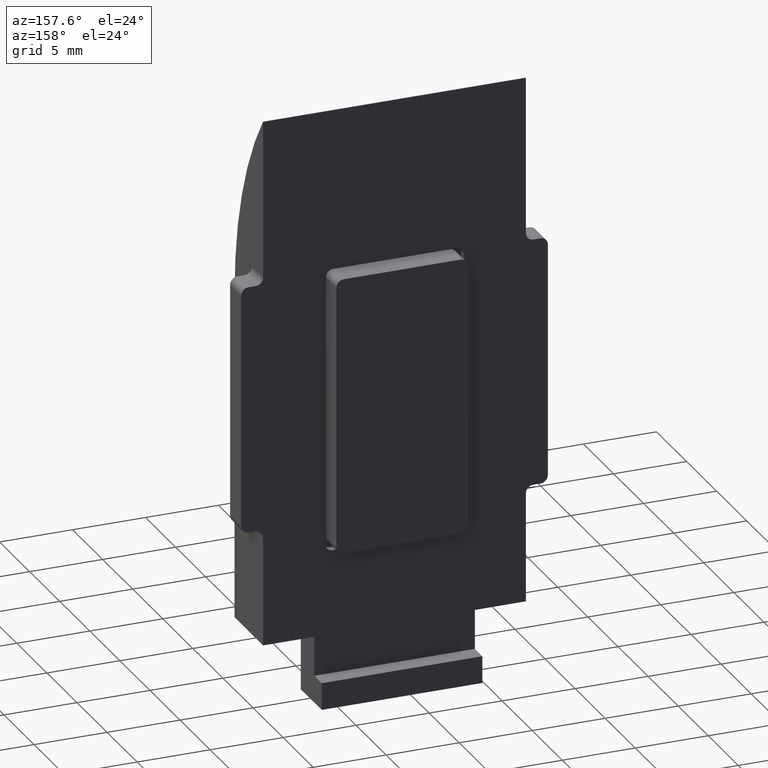
[diagram: clean part render]
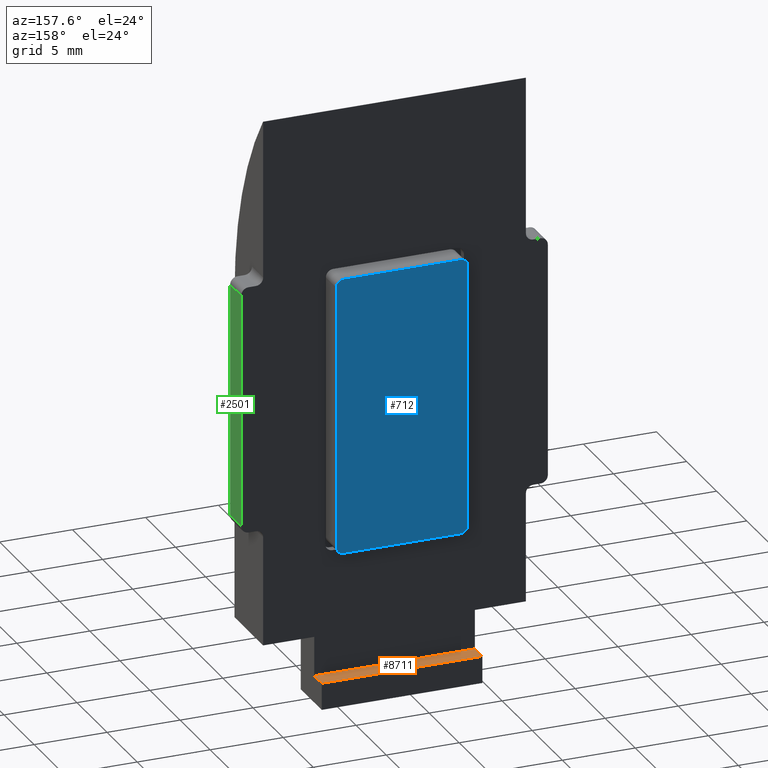
[diagram: same view with three faces highlighted in distinct colors, each labeled with its STEP entity id]
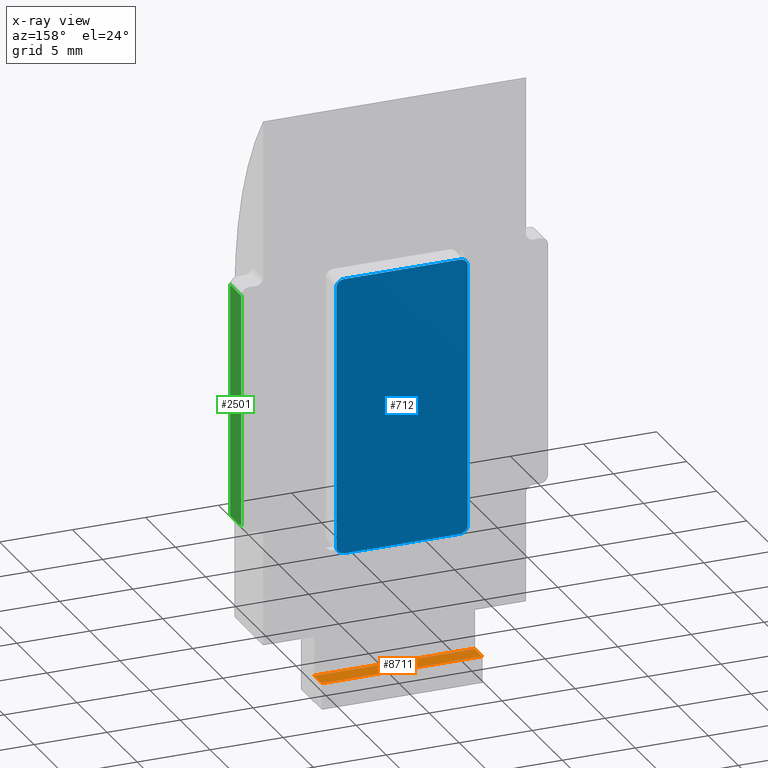
[diagram: x-ray of the same camera — body ghosted, the three highlighted faces saturated]
A machine part, auxiliary view with three faces highlighted in distinct colors.
The next image is the same camera in x-ray (body ghosted, the three faces saturated) — at least one of them is partly hidden behind the body in this view.
Their STEP definitions:

[orange] entity #8711 — the highlighted planar face has unit normal (0, 0, -1).
#147 = LINE ( 'NONE', #7138, #14439 ) ;
#710 = CARTESIAN_POINT ( 'NONE',  ( -5.500000000000000000, 4.750000000000001776, -2.700000000000021938 ) ) ;
#945 = VERTEX_POINT ( 'NONE', #6678 ) ;
#1002 = ORIENTED_EDGE ( 'NONE', *, *, #4517, .F. ) ;
#1059 = AXIS2_PLACEMENT_3D ( 'NONE', #15619, #15679, #3811 ) ;
#1560 = VERTEX_POINT ( 'NONE', #2457 ) ;
#1601 = ORIENTED_EDGE ( 'NONE', *, *, #2650, .F. ) ;
#1993 = DIRECTION ( 'NONE',  ( 0.000000000000000000, -1.000000000000000000, 0.000000000000000000 ) ) ;
#2457 = CARTESIAN_POINT ( 'NONE',  ( 5.500000000000000000, 4.750000000000001776, -2.700000000000021938 ) ) ;
#2650 = EDGE_CURVE ( 'NONE', #945, #1560, #7954, .T. ) ;
#3044 = VERTEX_POINT ( 'NONE', #710 ) ;
#3387 = EDGE_LOOP ( 'NONE', ( #7425, #7235, #1002, #1601 ) ) ;
#3520 = LINE ( 'NONE', #4364, #4766 ) ;
#3811 = DIRECTION ( 'NONE',  ( -1.000000000000000000, 0.000000000000000000, -0.000000000000000000 ) ) ;
#3854 = CARTESIAN_POINT ( 'NONE',  ( -5.500000000000000000, 5.999999999999988454, -2.700000000000021938 ) ) ;
#4364 = CARTESIAN_POINT ( 'NONE',  ( 9.000000000000000000, 5.999999999999988454, -2.700000000000021938 ) ) ;
#4517 = EDGE_CURVE ( 'NONE', #1560, #3044, #15724, .T. ) ;
#4766 = VECTOR ( 'NONE', #6965, 1000.000000000000000 ) ;
#6110 = EDGE_CURVE ( 'NONE', #8042, #3044, #147, .T. ) ;
#6678 = CARTESIAN_POINT ( 'NONE',  ( 5.500000000000000000, 5.999999999999988454, -2.700000000000021938 ) ) ;
#6965 = DIRECTION ( 'NONE',  ( -1.000000000000000000, -0.000000000000000000, -0.000000000000000000 ) ) ;
#7138 = CARTESIAN_POINT ( 'NONE',  ( -5.500000000000000000, 0.000000000000000000, -2.700000000000021938 ) ) ;
#7235 = ORIENTED_EDGE ( 'NONE', *, *, #6110, .T. ) ;
#7425 = ORIENTED_EDGE ( 'NONE', *, *, #10898, .T. ) ;
#7954 = LINE ( 'NONE', #9158, #12543 ) ;
#8042 = VERTEX_POINT ( 'NONE', #3854 ) ;
#8711 = ADVANCED_FACE ( 'NONE', ( #13540 ), #12978, .F. ) ;
#9158 = CARTESIAN_POINT ( 'NONE',  ( 5.499999999999998224, 8.673617379884035472E-16, -2.700000000000021938 ) ) ;
#10898 = EDGE_CURVE ( 'NONE', #945, #8042, #3520, .T. ) ;
#11848 = DIRECTION ( 'NONE',  ( -2.478176394252582127E-16, -1.000000000000000000, 0.000000000000000000 ) ) ;
#12543 = VECTOR ( 'NONE', #11848, 1000.000000000000000 ) ;
#12978 = PLANE ( 'NONE',  #1059 ) ;
#13540 = FACE_OUTER_BOUND ( 'NONE', #3387, .T. ) ;
#13619 = CARTESIAN_POINT ( 'NONE',  ( 9.000000000000000000, 4.750000000000001776, -2.700000000000021938 ) ) ;
#14439 = VECTOR ( 'NONE', #1993, 1000.000000000000000 ) ;
#15619 = CARTESIAN_POINT ( 'NONE',  ( 9.000000000000000000, 0.000000000000000000, -2.700000000000021938 ) ) ;
#15679 = DIRECTION ( 'NONE',  ( 0.000000000000000000, 0.000000000000000000, -1.000000000000000000 ) ) ;
#15724 = LINE ( 'NONE', #13619, #15939 ) ;
#15939 = VECTOR ( 'NONE', #16116, 1000.000000000000000 ) ;
#16116 = DIRECTION ( 'NONE',  ( -1.000000000000000000, -0.000000000000000000, -0.000000000000000000 ) ) ;

[blue] entity #712 — the highlighted planar face has unit normal (0, 1, -0).
#321 = DIRECTION ( 'NONE',  ( 3.189809467016240867E-16, -1.000000000000000000, 0.000000000000000000 ) ) ;
#335 = CARTESIAN_POINT ( 'NONE',  ( 18.49999999999999289, 8.499999999999996447, 1.750000000000001554 ) ) ;
#553 = EDGE_CURVE ( 'NONE', #13826, #2356, #1381, .T. ) ;
#606 = VECTOR ( 'NONE', #10391, 1000.000000000000000 ) ;
#610 = VERTEX_POINT ( 'NONE', #14327 ) ;
#703 = DIRECTION ( 'NONE',  ( 0.000000000000000000, 0.000000000000000000, 1.000000000000000000 ) ) ;
#712 = ADVANCED_FACE ( 'NONE', ( #9052 ), #7241, .T. ) ;
#759 = VECTOR ( 'NONE', #13999, 1000.000000000000000 ) ;
#1062 = CARTESIAN_POINT ( 'NONE',  ( 0.4999999999999970024, 8.499999999999998224, 1.749999999999999778 ) ) ;
#1087 = CARTESIAN_POINT ( 'NONE',  ( 0.000000000000000000, 0.000000000000000000, 1.749999999999999778 ) ) ;
#1381 = LINE ( 'NONE', #16808, #759 ) ;
#1822 = DIRECTION ( 'NONE',  ( 0.000000000000000000, 0.000000000000000000, 1.000000000000000000 ) ) ;
#2014 = ORIENTED_EDGE ( 'NONE', *, *, #5254, .T. ) ;
#2356 = VERTEX_POINT ( 'NONE', #10888 ) ;
#2698 = EDGE_LOOP ( 'NONE', ( #8949, #12854, #14445, #6241, #2014, #8377, #14547, #4828 ) ) ;
#2836 = LINE ( 'NONE', #8935, #6579 ) ;
#3506 = LINE ( 'NONE', #1087, #606 ) ;
#3620 = CIRCLE ( 'NONE', #8831, 0.5000000000000000000 ) ;
#3795 = CIRCLE ( 'NONE', #10307, 0.5000000000000004441 ) ;
#4184 = CARTESIAN_POINT ( 'NONE',  ( -3.469446951953614189E-15, 9.000000000000000000, 1.749999999999999778 ) ) ;
#4377 = DIRECTION ( 'NONE',  ( 1.000000000000000000, 0.000000000000000000, 0.000000000000000000 ) ) ;
#4455 = CARTESIAN_POINT ( 'NONE',  ( 18.99999999999999289, 8.499999999999996447, 1.750000000000001554 ) ) ;
#4741 = CARTESIAN_POINT ( 'NONE',  ( 18.50000000000000000, 0.5000000000000004441, 1.750000000000001554 ) ) ;
#4828 = ORIENTED_EDGE ( 'NONE', *, *, #9027, .T. ) ;
#5254 = EDGE_CURVE ( 'NONE', #16420, #7083, #3506, .T. ) ;
#6235 = EDGE_CURVE ( 'NONE', #11401, #15448, #2836, .T. ) ;
#6241 = ORIENTED_EDGE ( 'NONE', *, *, #8076, .T. ) ;
#6426 = VERTEX_POINT ( 'NONE', #16628 ) ;
#6459 = DIRECTION ( 'NONE',  ( 1.000000000000000000, 0.000000000000000000, 0.000000000000000000 ) ) ;
#6518 = VECTOR ( 'NONE', #321, 1000.000000000000000 ) ;
#6579 = VECTOR ( 'NONE', #7421, 1000.000000000000000 ) ;
#7083 = VERTEX_POINT ( 'NONE', #11543 ) ;
#7125 = LINE ( 'NONE', #4184, #6518 ) ;
#7241 = PLANE ( 'NONE',  #15404 ) ;
#7293 = DIRECTION ( 'NONE',  ( 1.000000000000000000, 0.000000000000000000, 0.000000000000000000 ) ) ;
#7368 = AXIS2_PLACEMENT_3D ( 'NONE', #335, #16081, #14725 ) ;
#7421 = DIRECTION ( 'NONE',  ( -3.854941057726239083E-16, 1.000000000000000000, 0.000000000000000000 ) ) ;
#7653 = CARTESIAN_POINT ( 'NONE',  ( 18.49999999999999289, 8.999999999999998224, 1.750000000000001554 ) ) ;
#8076 = EDGE_CURVE ( 'NONE', #610, #16420, #3620, .T. ) ;
#8377 = ORIENTED_EDGE ( 'NONE', *, *, #9214, .T. ) ;
#8831 = AXIS2_PLACEMENT_3D ( 'NONE', #16567, #1822, #4377 ) ;
#8935 = CARTESIAN_POINT ( 'NONE',  ( 19.00000000000000000, 0.000000000000000000, 1.750000000000001554 ) ) ;
#8949 = ORIENTED_EDGE ( 'NONE', *, *, #553, .T. ) ;
#9027 = EDGE_CURVE ( 'NONE', #15448, #13826, #13946, .T. ) ;
#9052 = FACE_OUTER_BOUND ( 'NONE', #2698, .T. ) ;
#9204 = CIRCLE ( 'NONE', #13490, 0.5000000000000000000 ) ;
#9214 = EDGE_CURVE ( 'NONE', #7083, #11401, #3795, .T. ) ;
#10307 = AXIS2_PLACEMENT_3D ( 'NONE', #4741, #15484, #15360 ) ;
#10391 = DIRECTION ( 'NONE',  ( 1.000000000000000000, 0.000000000000000000, 0.000000000000000000 ) ) ;
#10888 = CARTESIAN_POINT ( 'NONE',  ( 0.4999999999999970024, 9.000000000000000000, 1.749999999999999778 ) ) ;
#11243 = EDGE_CURVE ( 'NONE', #2356, #6426, #9204, .T. ) ;
#11401 = VERTEX_POINT ( 'NONE', #16170 ) ;
#11543 = CARTESIAN_POINT ( 'NONE',  ( 18.50000000000000000, 0.000000000000000000, 1.750000000000001554 ) ) ;
#12530 = CARTESIAN_POINT ( 'NONE',  ( 0.000000000000000000, 0.000000000000000000, 1.749999999999999778 ) ) ;
#12854 = ORIENTED_EDGE ( 'NONE', *, *, #11243, .T. ) ;
#13490 = AXIS2_PLACEMENT_3D ( 'NONE', #1062, #14373, #6459 ) ;
#13629 = EDGE_CURVE ( 'NONE', #6426, #610, #7125, .T. ) ;
#13826 = VERTEX_POINT ( 'NONE', #7653 ) ;
#13946 = CIRCLE ( 'NONE', #7368, 0.5000000000000004441 ) ;
#13999 = DIRECTION ( 'NONE',  ( -1.000000000000000000, 9.130123557772669567E-17, 0.000000000000000000 ) ) ;
#14327 = CARTESIAN_POINT ( 'NONE',  ( 0.000000000000000000, 0.5000000000000004441, 1.749999999999999778 ) ) ;
#14373 = DIRECTION ( 'NONE',  ( 0.000000000000000000, 0.000000000000000000, 1.000000000000000000 ) ) ;
#14445 = ORIENTED_EDGE ( 'NONE', *, *, #13629, .T. ) ;
#14547 = ORIENTED_EDGE ( 'NONE', *, *, #6235, .T. ) ;
#14725 = DIRECTION ( 'NONE',  ( 1.000000000000000000, 0.000000000000000000, 0.000000000000000000 ) ) ;
#15176 = CARTESIAN_POINT ( 'NONE',  ( 0.5000000000000004441, 0.000000000000000000, 1.749999999999999778 ) ) ;
#15360 = DIRECTION ( 'NONE',  ( 1.000000000000000000, 0.000000000000000000, 0.000000000000000000 ) ) ;
#15404 = AXIS2_PLACEMENT_3D ( 'NONE', #12530, #703, #7293 ) ;
#15448 = VERTEX_POINT ( 'NONE', #4455 ) ;
#15484 = DIRECTION ( 'NONE',  ( 0.000000000000000000, 0.000000000000000000, 1.000000000000000000 ) ) ;
#16081 = DIRECTION ( 'NONE',  ( 0.000000000000000000, 0.000000000000000000, 1.000000000000000000 ) ) ;
#16170 = CARTESIAN_POINT ( 'NONE',  ( 19.00000000000000000, 0.5000000000000004441, 1.750000000000001554 ) ) ;
#16420 = VERTEX_POINT ( 'NONE', #15176 ) ;
#16567 = CARTESIAN_POINT ( 'NONE',  ( 0.5000000000000004441, 0.5000000000000004441, 1.749999999999999778 ) ) ;
#16628 = CARTESIAN_POINT ( 'NONE',  ( -3.469446951953614189E-15, 8.499999999999998224, 1.749999999999999778 ) ) ;
#16808 = CARTESIAN_POINT ( 'NONE',  ( 18.99999999999999289, 8.999999999999998224, 1.750000000000001554 ) ) ;

[green] entity #2501 — the highlighted planar face has unit normal (-1, 0, 0).
#194 = EDGE_CURVE ( 'NONE', #11436, #795, #7387, .T. ) ;
#795 = VERTEX_POINT ( 'NONE', #16707 ) ;
#811 = VERTEX_POINT ( 'NONE', #11616 ) ;
#842 = EDGE_CURVE ( 'NONE', #811, #11436, #11766, .T. ) ;
#1938 = DIRECTION ( 'NONE',  ( -1.000000000000000000, 0.000000000000000000, 0.000000000000000000 ) ) ;
#2145 = DIRECTION ( 'NONE',  ( 0.000000000000000000, -1.000000000000000000, 0.000000000000000000 ) ) ;
#2501 = ADVANCED_FACE ( 'NONE', ( #4867 ), #13816, .F. ) ;
#4032 = DIRECTION ( 'NONE',  ( -0.000000000000000000, 1.530638361156006245E-16, -1.000000000000000000 ) ) ;
#4080 = ORIENTED_EDGE ( 'NONE', *, *, #842, .T. ) ;
#4434 = CARTESIAN_POINT ( 'NONE',  ( 10.49999999999999822, 0.000000000000000000, 0.000000000000000000 ) ) ;
#4867 = FACE_OUTER_BOUND ( 'NONE', #11449, .T. ) ;
#4925 = VECTOR ( 'NONE', #5603, 1000.000000000000000 ) ;
#5129 = ORIENTED_EDGE ( 'NONE', *, *, #6376, .T. ) ;
#5473 = CARTESIAN_POINT ( 'NONE',  ( 10.49999999999999822, 4.749999999999995559, 8.499999999999976907 ) ) ;
#5603 = DIRECTION ( 'NONE',  ( -0.000000000000000000, -0.000000000000000000, 1.000000000000000000 ) ) ;
#6376 = EDGE_CURVE ( 'NONE', #13590, #811, #17177, .T. ) ;
#7268 = EDGE_CURVE ( 'NONE', #795, #13590, #16949, .T. ) ;
#7387 = LINE ( 'NONE', #11939, #12812 ) ;
#7707 = ORIENTED_EDGE ( 'NONE', *, *, #7268, .T. ) ;
#7761 = CARTESIAN_POINT ( 'NONE',  ( 10.49999999999999822, 0.000000000000000000, 8.499999999999976907 ) ) ;
#8109 = CARTESIAN_POINT ( 'NONE',  ( 10.49999999999999822, 2.899999999999986589, 24.49999999999997513 ) ) ;
#9213 = DIRECTION ( 'NONE',  ( 0.000000000000000000, 1.000000000000000000, 0.000000000000000000 ) ) ;
#10108 = CARTESIAN_POINT ( 'NONE',  ( 10.49999999999999822, 0.000000000000000000, 24.49999999999997513 ) ) ;
#11436 = VERTEX_POINT ( 'NONE', #8109 ) ;
#11449 = EDGE_LOOP ( 'NONE', ( #12923, #7707, #5129, #4080 ) ) ;
#11616 = CARTESIAN_POINT ( 'NONE',  ( 10.49999999999999822, 4.749999999999995559, 24.49999999999997513 ) ) ;
#11766 = LINE ( 'NONE', #10108, #15673 ) ;
#11939 = CARTESIAN_POINT ( 'NONE',  ( 10.49999999999999822, 2.899999999999988365, 7.999999999999976019 ) ) ;
#12594 = VECTOR ( 'NONE', #9213, 1000.000000000000000 ) ;
#12693 = AXIS2_PLACEMENT_3D ( 'NONE', #4434, #1938, #13690 ) ;
#12812 = VECTOR ( 'NONE', #4032, 1000.000000000000000 ) ;
#12923 = ORIENTED_EDGE ( 'NONE', *, *, #194, .T. ) ;
#13590 = VERTEX_POINT ( 'NONE', #5473 ) ;
#13690 = DIRECTION ( 'NONE',  ( 0.000000000000000000, 0.000000000000000000, 1.000000000000000000 ) ) ;
#13816 = PLANE ( 'NONE',  #12693 ) ;
#15673 = VECTOR ( 'NONE', #2145, 1000.000000000000000 ) ;
#16084 = CARTESIAN_POINT ( 'NONE',  ( 10.49999999999999822, 4.749999999999995559, 24.99999999999997868 ) ) ;
#16707 = CARTESIAN_POINT ( 'NONE',  ( 10.49999999999999822, 2.899999999999988365, 8.499999999999976907 ) ) ;
#16949 = LINE ( 'NONE', #7761, #12594 ) ;
#17177 = LINE ( 'NONE', #16084, #4925 ) ;